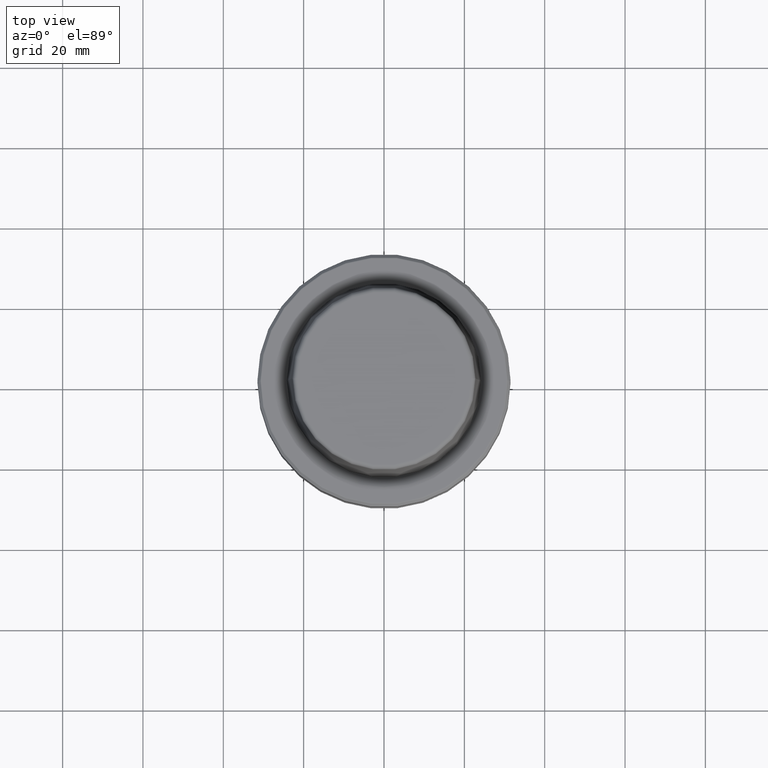
[diagram: clean part render]
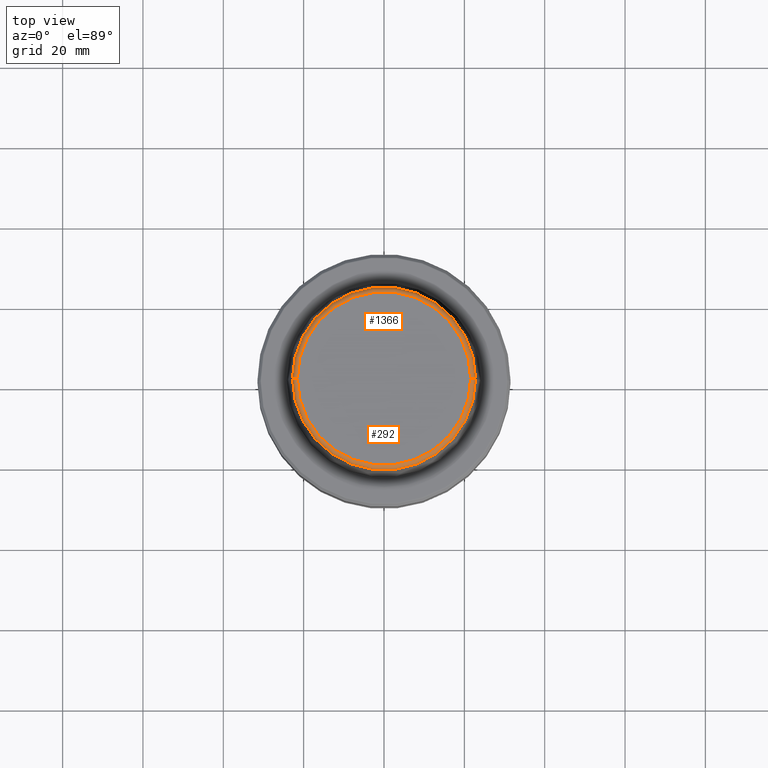
[diagram: same view with one multi-face feature highlighted, each face labeled with its STEP entity id]
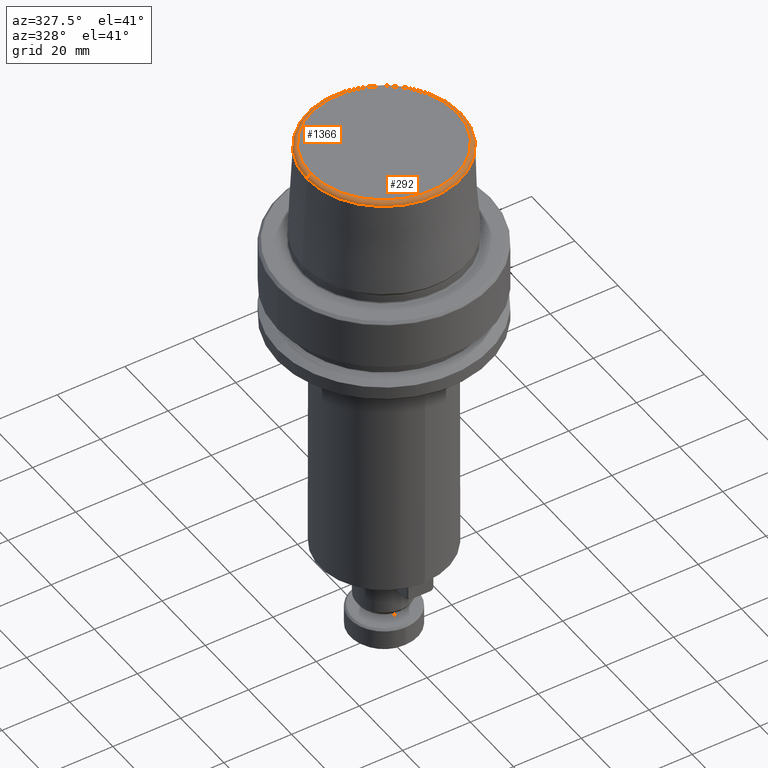
[diagram: same view with one multi-face feature highlighted, each face labeled with its STEP entity id]
A machine part, top view. The highlighted faces form ONE feature: a constant-radius fillet chain: 2 tangent blend faces with common blend radius 1.2 mm. The faces share edges in the B-rep.
A second angle (auxiliary view) of the same feature is appended — it is thin or edge-on in the first view.
Their STEP definitions:
[1] entity #1366 (Torus):
#236 = VERTEX_POINT ( 'NONE', #1661 ) ;
#376 = CARTESIAN_POINT ( 'NONE',  ( 0.0000000000000000000, 0.0000000000000000000, 30.69999999999999200 ) ) ;
#582 = DIRECTION ( 'NONE',  ( -0.0000000000000000000, -0.0000000000000000000, 1.000000000000000000 ) ) ;
#591 = FACE_OUTER_BOUND ( 'NONE', #2257, .T. ) ;
#659 = DIRECTION ( 'NONE',  ( -0.0000000000000000000, -0.0000000000000000000, 1.000000000000000000 ) ) ;
#661 = VERTEX_POINT ( 'NONE', #1472 ) ;
#702 = CIRCLE ( 'NONE', #2398, 21.58108272732117100 ) ;
#783 = ORIENTED_EDGE ( 'NONE', *, *, #2416, .F. ) ;
#804 = EDGE_CURVE ( 'NONE', #2253, #2667, #702, .T. ) ;
#806 = AXIS2_PLACEMENT_3D ( 'NONE', #2526, #1215, #2749 ) ;
#865 = CARTESIAN_POINT ( 'NONE',  ( -21.58108272732117100, 2.716307157494421400E-015, 31.89999999999999900 ) ) ;
#907 = ORIENTED_EDGE ( 'NONE', *, *, #1437, .T. ) ;
#914 = CIRCLE ( 'NONE', #1450, 1.200000000000003100 ) ;
#1053 = CARTESIAN_POINT ( 'NONE',  ( 0.0000000000000000000, 0.0000000000000000000, 31.89999999999999900 ) ) ;
#1089 = AXIS2_PLACEMENT_3D ( 'NONE', #376, #659, #2656 ) ;
#1102 = TOROIDAL_SURFACE ( 'NONE', #1089, 21.58108272732117100, 1.200000000000003100 ) ;
#1141 = DIRECTION ( 'NONE',  ( 1.224646799147353200E-016, 1.000000000000000000, 0.0000000000000000000 ) ) ;
#1215 = DIRECTION ( 'NONE',  ( 0.0000000000000000000, -1.000000000000000000, 0.0000000000000000000 ) ) ;
#1366 = ADVANCED_FACE ( 'NONE', ( #591 ), #1102, .T. ) ;
#1437 = EDGE_CURVE ( 'NONE', #236, #661, #2575, .T. ) ;
#1450 = AXIS2_PLACEMENT_3D ( 'NONE', #2447, #1141, #2671 ) ;
#1466 = CIRCLE ( 'NONE', #806, 1.200000000000003100 ) ;
#1472 = CARTESIAN_POINT ( 'NONE',  ( -22.77957961851797100, 0.0000000000000000000, 30.76004333261571900 ) ) ;
#1661 = CARTESIAN_POINT ( 'NONE',  ( 22.77957961851797100, 2.874852597157249900E-015, 30.76004333261571900 ) ) ;
#1799 = DIRECTION ( 'NONE',  ( -0.0000000000000000000, -0.0000000000000000000, 1.000000000000000000 ) ) ;
#2029 = CARTESIAN_POINT ( 'NONE',  ( 21.58108272732117100, 0.0000000000000000000, 31.89999999999999900 ) ) ;
#2122 = ORIENTED_EDGE ( 'NONE', *, *, #804, .F. ) ;
#2134 = DIRECTION ( 'NONE',  ( 1.000000000000000000, 0.0000000000000000000, 0.0000000000000000000 ) ) ;
#2176 = EDGE_CURVE ( 'NONE', #661, #2667, #914, .T. ) ;
#2253 = VERTEX_POINT ( 'NONE', #2029 ) ;
#2257 = EDGE_LOOP ( 'NONE', ( #907, #2475, #2122, #783 ) ) ;
#2398 = AXIS2_PLACEMENT_3D ( 'NONE', #1053, #582, #2134 ) ;
#2416 = EDGE_CURVE ( 'NONE', #236, #2253, #1466, .T. ) ;
#2442 = CARTESIAN_POINT ( 'NONE',  ( 0.0000000000000000000, 0.0000000000000000000, 30.76004333261571900 ) ) ;
#2447 = CARTESIAN_POINT ( 'NONE',  ( -21.58108272732117100, 2.642920388414810300E-015, 30.69999999999999200 ) ) ;
#2475 = ORIENTED_EDGE ( 'NONE', *, *, #2176, .T. ) ;
#2526 = CARTESIAN_POINT ( 'NONE',  ( 21.58108272732117100, 0.0000000000000000000, 30.69999999999999200 ) ) ;
#2552 = AXIS2_PLACEMENT_3D ( 'NONE', #2442, #1799, #2719 ) ;
#2575 = CIRCLE ( 'NONE', #2552, 22.77957961851797100 ) ;
#2656 = DIRECTION ( 'NONE',  ( 1.000000000000000000, 0.0000000000000000000, 0.0000000000000000000 ) ) ;
#2667 = VERTEX_POINT ( 'NONE', #865 ) ;
#2671 = DIRECTION ( 'NONE',  ( -1.000000000000000000, 1.224646799147353200E-016, 0.0000000000000000000 ) ) ;
#2719 = DIRECTION ( 'NONE',  ( 1.000000000000000000, 0.0000000000000000000, 0.0000000000000000000 ) ) ;
#2749 = DIRECTION ( 'NONE',  ( 0.0000000000000000000, 0.0000000000000000000, -1.000000000000000000 ) ) ;
[2] entity #292 (Torus):
#14 = DIRECTION ( 'NONE',  ( -0.0000000000000000000, -0.0000000000000000000, 1.000000000000000000 ) ) ;
#194 = AXIS2_PLACEMENT_3D ( 'NONE', #2736, #1804, #503 ) ;
#236 = VERTEX_POINT ( 'NONE', #1661 ) ;
#290 = DIRECTION ( 'NONE',  ( -0.0000000000000000000, -0.0000000000000000000, 1.000000000000000000 ) ) ;
#292 = ADVANCED_FACE ( 'NONE', ( #2112 ), #461, .T. ) ;
#428 = CIRCLE ( 'NONE', #1590, 22.77957961851797100 ) ;
#461 = TOROIDAL_SURFACE ( 'NONE', #194, 21.58108272732117100, 1.200000000000003100 ) ;
#503 = DIRECTION ( 'NONE',  ( 1.000000000000000000, 0.0000000000000000000, 0.0000000000000000000 ) ) ;
#628 = CIRCLE ( 'NONE', #846, 21.58108272732117100 ) ;
#661 = VERTEX_POINT ( 'NONE', #1472 ) ;
#806 = AXIS2_PLACEMENT_3D ( 'NONE', #2526, #1215, #2749 ) ;
#846 = AXIS2_PLACEMENT_3D ( 'NONE', #2356, #14, #1303 ) ;
#865 = CARTESIAN_POINT ( 'NONE',  ( -21.58108272732117100, 2.716307157494421400E-015, 31.89999999999999900 ) ) ;
#914 = CIRCLE ( 'NONE', #1450, 1.200000000000003100 ) ;
#1105 = EDGE_CURVE ( 'NONE', #2667, #2253, #628, .T. ) ;
#1141 = DIRECTION ( 'NONE',  ( 1.224646799147353200E-016, 1.000000000000000000, 0.0000000000000000000 ) ) ;
#1215 = DIRECTION ( 'NONE',  ( 0.0000000000000000000, -1.000000000000000000, 0.0000000000000000000 ) ) ;
#1303 = DIRECTION ( 'NONE',  ( 1.000000000000000000, 0.0000000000000000000, 0.0000000000000000000 ) ) ;
#1450 = AXIS2_PLACEMENT_3D ( 'NONE', #2447, #1141, #2671 ) ;
#1466 = CIRCLE ( 'NONE', #806, 1.200000000000003100 ) ;
#1472 = CARTESIAN_POINT ( 'NONE',  ( -22.77957961851797100, 0.0000000000000000000, 30.76004333261571900 ) ) ;
#1579 = CARTESIAN_POINT ( 'NONE',  ( 0.0000000000000000000, 0.0000000000000000000, 30.76004333261571900 ) ) ;
#1590 = AXIS2_PLACEMENT_3D ( 'NONE', #1579, #290, #1795 ) ;
#1661 = CARTESIAN_POINT ( 'NONE',  ( 22.77957961851797100, 2.874852597157249900E-015, 30.76004333261571900 ) ) ;
#1795 = DIRECTION ( 'NONE',  ( 1.000000000000000000, 0.0000000000000000000, 0.0000000000000000000 ) ) ;
#1804 = DIRECTION ( 'NONE',  ( -0.0000000000000000000, -0.0000000000000000000, 1.000000000000000000 ) ) ;
#1923 = EDGE_LOOP ( 'NONE', ( #2226, #2747, #2439, #2274 ) ) ;
#2029 = CARTESIAN_POINT ( 'NONE',  ( 21.58108272732117100, 0.0000000000000000000, 31.89999999999999900 ) ) ;
#2112 = FACE_OUTER_BOUND ( 'NONE', #1923, .T. ) ;
#2176 = EDGE_CURVE ( 'NONE', #661, #2667, #914, .T. ) ;
#2181 = EDGE_CURVE ( 'NONE', #661, #236, #428, .T. ) ;
#2226 = ORIENTED_EDGE ( 'NONE', *, *, #2176, .F. ) ;
#2253 = VERTEX_POINT ( 'NONE', #2029 ) ;
#2274 = ORIENTED_EDGE ( 'NONE', *, *, #1105, .F. ) ;
#2356 = CARTESIAN_POINT ( 'NONE',  ( 0.0000000000000000000, 0.0000000000000000000, 31.89999999999999900 ) ) ;
#2416 = EDGE_CURVE ( 'NONE', #236, #2253, #1466, .T. ) ;
#2439 = ORIENTED_EDGE ( 'NONE', *, *, #2416, .T. ) ;
#2447 = CARTESIAN_POINT ( 'NONE',  ( -21.58108272732117100, 2.642920388414810300E-015, 30.69999999999999200 ) ) ;
#2526 = CARTESIAN_POINT ( 'NONE',  ( 21.58108272732117100, 0.0000000000000000000, 30.69999999999999200 ) ) ;
#2667 = VERTEX_POINT ( 'NONE', #865 ) ;
#2671 = DIRECTION ( 'NONE',  ( -1.000000000000000000, 1.224646799147353200E-016, 0.0000000000000000000 ) ) ;
#2736 = CARTESIAN_POINT ( 'NONE',  ( 0.0000000000000000000, 0.0000000000000000000, 30.69999999999999200 ) ) ;
#2747 = ORIENTED_EDGE ( 'NONE', *, *, #2181, .T. ) ;
#2749 = DIRECTION ( 'NONE',  ( 0.0000000000000000000, 0.0000000000000000000, -1.000000000000000000 ) ) ;